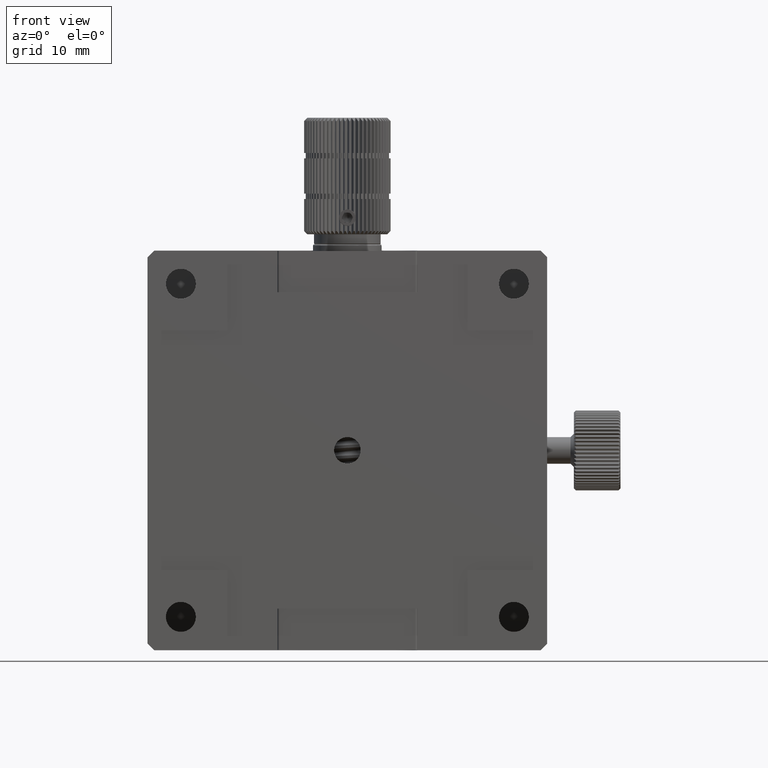
[diagram: clean part render]
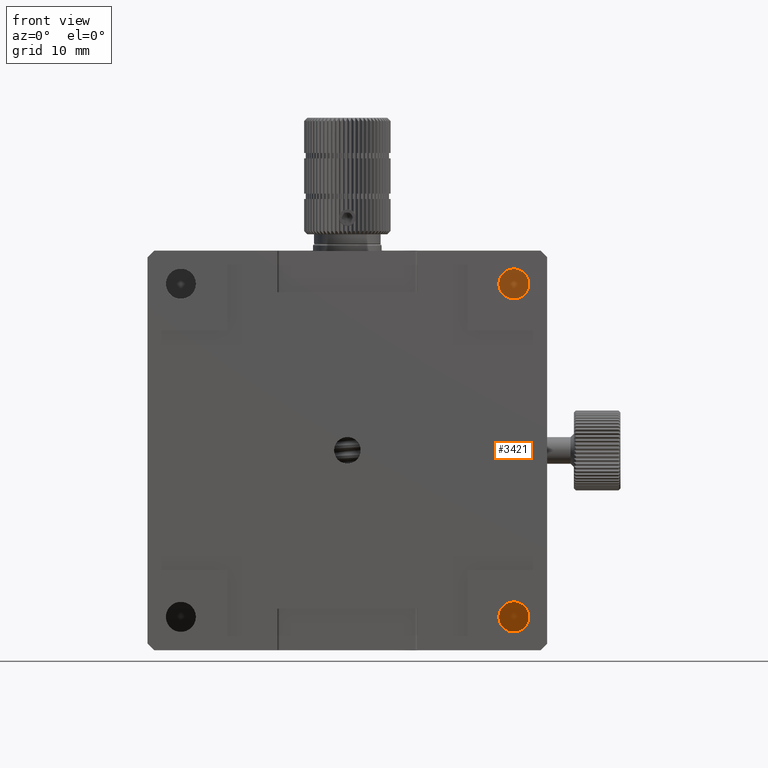
[diagram: same view with one face highlighted and labeled with its STEP entity id]
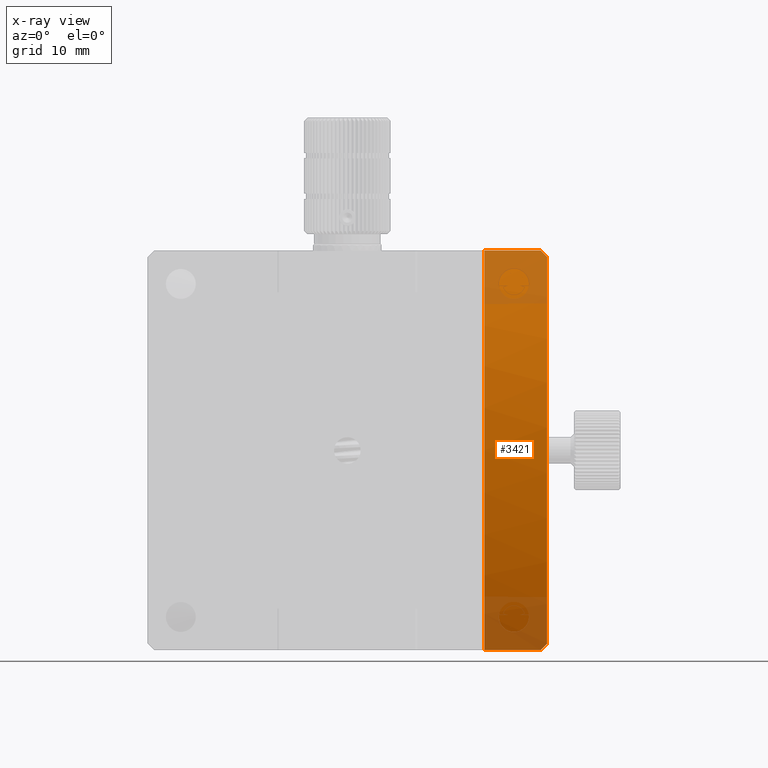
[diagram: x-ray of the same camera — body ghosted, the highlighted face saturated]
A machine part, front view. The second image highlights one B-rep face of the part: STEP entity #3421.
The next image is the same camera in x-ray: the body ghosted, the highlighted face saturated — about 21% of this face is hidden behind the body in this view.
In plain terms, the highlighted cylindrical surface (partial cylindrical patch) has radius 53 mm, axis along (1, -0, -0).
Its self-contained STEP definition (entity closure, byte-faithful):
#917 = CARTESIAN_POINT ( 'NONE',  ( 79.05815170114996704, 52.64446860276279949, 20.22904667704475301 ) ) ;
#3421 = ADVANCED_FACE ( 'NONE', ( #19144 ), #49478, .T. ) ;
#4144 = EDGE_LOOP ( 'NONE', ( #38323, #42549, #4217, #15859, #9276, #53461 ) ) ;
#4217 = ORIENTED_EDGE ( 'NONE', *, *, #19241, .F. ) ;
#6394 = CARTESIAN_POINT ( 'NONE',  ( 80.05815170115005230, 51.97442712703207945, 79.22904667704472104 ) ) ;
#8823 = DIRECTION ( 'NONE',  ( 3.927675794664470560E-15, 1.000000000000000000, 0.000000000000000000 ) ) ;
#9276 = ORIENTED_EDGE ( 'NONE', *, *, #63630, .T. ) ;
#9869 = CARTESIAN_POINT ( 'NONE',  ( 70.60815170115003525, 52.64446860276284212, 80.22904667704474946 ) ) ;
#10811 = CARTESIAN_POINT ( 'NONE',  ( 80.05815170114995283, 51.97442712703207945, 21.22904667704476722 ) ) ;
#13208 = CIRCLE ( 'NONE', #41822, 52.99999999999996447 ) ;
#13941 = DIRECTION ( 'NONE',  ( 1.000000000000000000, -4.044064531500963730E-15, -1.529834895190534914E-15 ) ) ;
#14044 = VERTEX_POINT ( 'NONE', #10811 ) ;
#15859 = ORIENTED_EDGE ( 'NONE', *, *, #66381, .T. ) ;
#16253 = CARTESIAN_POINT ( 'NONE',  ( 20.05815170114989243, 52.64446860276279949, 20.22904667704483828 ) ) ;
#17795 = CARTESIAN_POINT ( 'NONE',  ( 80.05815170115019441, 96.33657315266972887, 50.22904667704474946 ) ) ;
#18379 = EDGE_CURVE ( 'NONE', #18647, #20755, #33721, .T. ) ;
#18647 = VERTEX_POINT ( 'NONE', #9869 ) ;
#19144 = FACE_OUTER_BOUND ( 'NONE', #4144, .T. ) ;
#19241 = EDGE_CURVE ( 'NONE', #23860, #41440, #21059, .T. ) ;
#20171 = VECTOR ( 'NONE', #34053, 1000.000000000000000 ) ;
#20755 = VERTEX_POINT ( 'NONE', #23261 ) ;
#21059 = LINE ( 'NONE', #16253, #52206 ) ;
#22015 = CARTESIAN_POINT ( 'NONE',  ( 70.60815170114994999, 52.64446860276282791, 20.22904667704476012 ) ) ;
#23261 = CARTESIAN_POINT ( 'NONE',  ( 79.05815170115005230, 52.64446860276281370, 80.22904667704472104 ) ) ;
#23390 = CARTESIAN_POINT ( 'NONE',  ( 20.05815170114998125, 52.64446860276284212, 80.22904667704482051 ) ) ;
#23860 = VERTEX_POINT ( 'NONE', #51398 ) ;
#27522 = VERTEX_POINT ( 'NONE', #32727 ) ;
#27699 = CARTESIAN_POINT ( 'NONE',  ( 79.72039891120417110, 52.19521966720294159, 79.56679946699061645 ) ) ;
#28720 = CARTESIAN_POINT ( 'NONE',  ( 79.05815170115005230, 52.64446860276281370, 80.22904667704472104 ) ) ;
#32727 = CARTESIAN_POINT ( 'NONE',  ( 80.05815170115005230, 51.97442712703207945, 79.22904667704472104 ) ) ;
#32927 = CARTESIAN_POINT ( 'NONE',  ( 80.05815170115018020, 96.33657315266972887, 50.22904667704474946 ) ) ;
#33721 = LINE ( 'NONE', #23390, #20171 ) ;
#34053 = DIRECTION ( 'NONE',  ( 1.000000000000000000, 0.000000000000000000, -1.529834895190537477E-15 ) ) ;
#34735 = B_SPLINE_CURVE_WITH_KNOTS ( 'NONE', 3,
 ( #6394, #27699, #38728, #28720 ),
 .UNSPECIFIED., .F., .F.,
 ( 4, 4 ),
 ( 0.000000000000000000, 1.000000000000000000 ),
 .UNSPECIFIED. ) ;
#37728 = CARTESIAN_POINT ( 'NONE',  ( 80.05815170114995283, 51.97442712703207945, 21.22904667704476722 ) ) ;
#38323 = ORIENTED_EDGE ( 'NONE', *, *, #18379, .F. ) ;
#38728 = CARTESIAN_POINT ( 'NONE',  ( 79.38706557787082829, 52.41862879936417841, 79.90013280032397347 ) ) ;
#41440 = VERTEX_POINT ( 'NONE', #22015 ) ;
#41822 = AXIS2_PLACEMENT_3D ( 'NONE', #51145, #13941, #53095 ) ;
#42454 = EDGE_CURVE ( 'NONE', #18647, #41440, #13208, .T. ) ;
#42549 = ORIENTED_EDGE ( 'NONE', *, *, #42454, .T. ) ;
#43939 = CIRCLE ( 'NONE', #60414, 52.99999999999997868 ) ;
#48103 = CARTESIAN_POINT ( 'NONE',  ( 79.72039891120186894, 52.19521966720436268, 20.89129388709669044 ) ) ;
#48150 = DIRECTION ( 'NONE',  ( -1.000000000000000000, 4.044064531500963730E-15, 1.529834895190534914E-15 ) ) ;
#49478 = CYLINDRICAL_SURFACE ( 'NONE', #53061, 52.99999999999997868 ) ;
#51145 = CARTESIAN_POINT ( 'NONE',  ( 70.60815170115017736, 96.33657315266977150, 50.22904667704475656 ) ) ;
#51398 = CARTESIAN_POINT ( 'NONE',  ( 79.05815170114996704, 52.64446860276279949, 20.22904667704475301 ) ) ;
#51758 = DIRECTION ( 'NONE',  ( -1.000000000000000000, 0.000000000000000000, 1.529834895190537477E-15 ) ) ;
#52206 = VECTOR ( 'NONE', #51758, 1000.000000000000000 ) ;
#52943 = CARTESIAN_POINT ( 'NONE',  ( 79.38706557786854034, 52.41862879936566344, 20.55796055376336184 ) ) ;
#53061 = AXIS2_PLACEMENT_3D ( 'NONE', #17795, #65314, #8823 ) ;
#53095 = DIRECTION ( 'NONE',  ( 3.927675794664471349E-15, 1.000000000000000000, 0.000000000000000000 ) ) ;
#53461 = ORIENTED_EDGE ( 'NONE', *, *, #59517, .T. ) ;
#59467 = DIRECTION ( 'NONE',  ( 3.927675794664470560E-15, 1.000000000000000000, 0.000000000000000000 ) ) ;
#59517 = EDGE_CURVE ( 'NONE', #27522, #20755, #34735, .T. ) ;
#60268 = B_SPLINE_CURVE_WITH_KNOTS ( 'NONE', 3,
 ( #917, #52943, #48103, #37728 ),
 .UNSPECIFIED., .F., .F.,
 ( 4, 4 ),
 ( 0.000000000000000000, 1.000000000000000000 ),
 .UNSPECIFIED. ) ;
#60414 = AXIS2_PLACEMENT_3D ( 'NONE', #32927, #48150, #59467 ) ;
#63630 = EDGE_CURVE ( 'NONE', #14044, #27522, #43939, .T. ) ;
#65314 = DIRECTION ( 'NONE',  ( 1.000000000000000000, -4.044064531500963730E-15, -1.529834895190534914E-15 ) ) ;
#66381 = EDGE_CURVE ( 'NONE', #23860, #14044, #60268, .T. ) ;